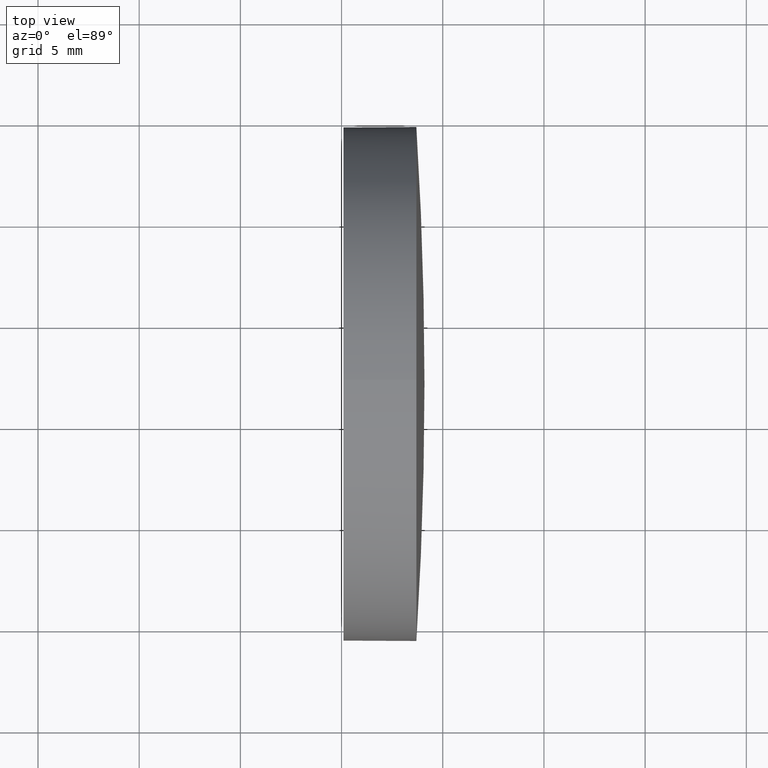
[diagram: clean part render]
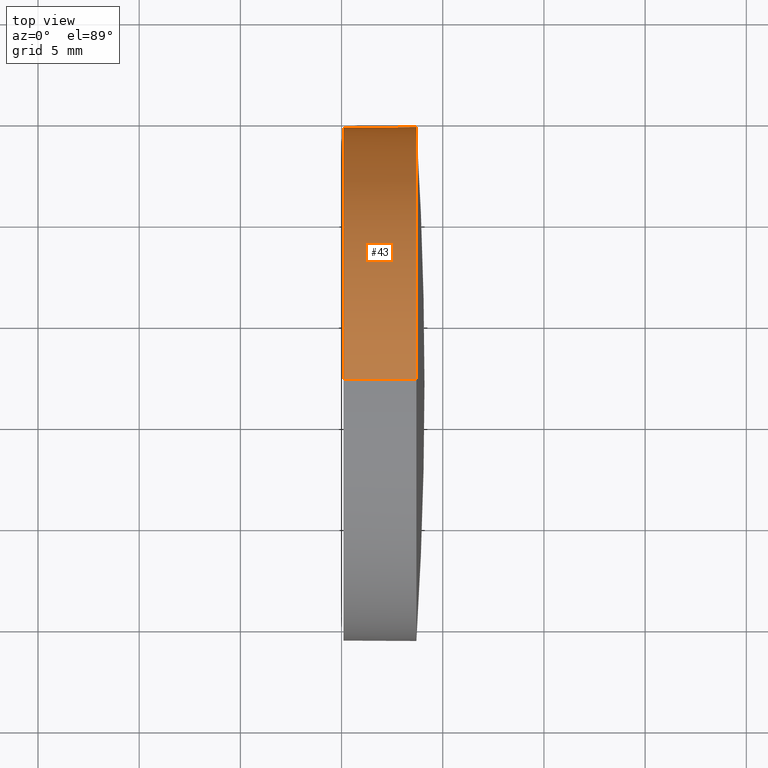
[diagram: same view with one face highlighted and labeled with its STEP entity id]
A machine part, top view. The second image highlights one B-rep face of the part: STEP entity #43.
In plain terms, the highlighted cylindrical surface (partial cylindrical patch) has radius 12.7 mm, axis along (-1, -0, -0).
Its self-contained STEP definition (entity closure, byte-faithful):
#6 = DIRECTION ( 'NONE',  ( 0.0000000000000000000, 0.0000000000000000000, 1.000000000000000000 ) ) ;
#10 = DIRECTION ( 'NONE',  ( -1.000000000000000000, -0.0000000000000000000, -0.0000000000000000000 ) ) ;
#13 = VERTEX_POINT ( 'NONE', #171 ) ;
#15 = CIRCLE ( 'NONE', #86, 12.70000000000001700 ) ;
#16 = AXIS2_PLACEMENT_3D ( 'NONE', #103, #161, #6 ) ;
#23 = CYLINDRICAL_SURFACE ( 'NONE', #16, 12.70000000000001700 ) ;
#25 = CIRCLE ( 'NONE', #48, 12.70000000000001700 ) ;
#26 = LINE ( 'NONE', #80, #147 ) ;
#28 = CARTESIAN_POINT ( 'NONE',  ( 433.6975226091756200, 147.0190194296691600, 0.0000000000000000000 ) ) ;
#30 = CARTESIAN_POINT ( 'NONE',  ( 433.6975226091756200, 147.0190194296691600, 12.70000000000001700 ) ) ;
#31 = DIRECTION ( 'NONE',  ( 0.0000000000000000000, 0.0000000000000000000, 1.000000000000000000 ) ) ;
#33 = ORIENTED_EDGE ( 'NONE', *, *, #167, .F. ) ;
#34 = DIRECTION ( 'NONE',  ( -1.000000000000000000, -0.0000000000000000000, -0.0000000000000000000 ) ) ;
#35 = EDGE_CURVE ( 'NONE', #36, #123, #26, .T. ) ;
#36 = VERTEX_POINT ( 'NONE', #30 ) ;
#43 = ADVANCED_FACE ( 'NONE', ( #182 ), #23, .T. ) ;
#47 = CARTESIAN_POINT ( 'NONE',  ( 433.6975226091756200, 147.0190194296691600, 0.0000000000000000000 ) ) ;
#48 = AXIS2_PLACEMENT_3D ( 'NONE', #47, #10, #79 ) ;
#64 = DIRECTION ( 'NONE',  ( 0.0000000000000000000, 0.0000000000000000000, 1.000000000000000000 ) ) ;
#65 = CARTESIAN_POINT ( 'NONE',  ( 430.0975226091756000, 147.0190194296691600, 12.70000000000001700 ) ) ;
#78 = DIRECTION ( 'NONE',  ( -1.000000000000000000, -0.0000000000000000000, -0.0000000000000000000 ) ) ;
#79 = DIRECTION ( 'NONE',  ( 0.0000000000000000000, 0.0000000000000000000, 1.000000000000000000 ) ) ;
#80 = CARTESIAN_POINT ( 'NONE',  ( 424.4676265580184200, 147.0190194296691600, 12.70000000000001700 ) ) ;
#81 = ORIENTED_EDGE ( 'NONE', *, *, #35, .F. ) ;
#86 = AXIS2_PLACEMENT_3D ( 'NONE', #28, #154, #64 ) ;
#91 = ORIENTED_EDGE ( 'NONE', *, *, #118, .T. ) ;
#100 = VERTEX_POINT ( 'NONE', #176 ) ;
#103 = CARTESIAN_POINT ( 'NONE',  ( 424.4676265580184200, 147.0190194296691600, 0.0000000000000000000 ) ) ;
#118 = EDGE_CURVE ( 'NONE', #155, #13, #172, .T. ) ;
#123 = VERTEX_POINT ( 'NONE', #65 ) ;
#134 = EDGE_CURVE ( 'NONE', #36, #100, #25, .T. ) ;
#142 = VECTOR ( 'NONE', #34, 1000.000000000000000 ) ;
#144 = AXIS2_PLACEMENT_3D ( 'NONE', #152, #78, #31 ) ;
#145 = DIRECTION ( 'NONE',  ( -1.000000000000000000, -0.0000000000000000000, -0.0000000000000000000 ) ) ;
#147 = VECTOR ( 'NONE', #145, 1000.000000000000000 ) ;
#152 = CARTESIAN_POINT ( 'NONE',  ( 430.0975226091756000, 147.0190194296691600, 0.0000000000000000000 ) ) ;
#154 = DIRECTION ( 'NONE',  ( -1.000000000000000000, -0.0000000000000000000, -0.0000000000000000000 ) ) ;
#155 = VERTEX_POINT ( 'NONE', #164 ) ;
#158 = ORIENTED_EDGE ( 'NONE', *, *, #183, .T. ) ;
#161 = DIRECTION ( 'NONE',  ( -1.000000000000000000, -0.0000000000000000000, -0.0000000000000000000 ) ) ;
#164 = CARTESIAN_POINT ( 'NONE',  ( 433.6975226091756200, 147.0190194296691600, -12.70000000000001700 ) ) ;
#167 = EDGE_CURVE ( 'NONE', #123, #13, #178, .T. ) ;
#171 = CARTESIAN_POINT ( 'NONE',  ( 430.0975226091756000, 147.0190194296691600, -12.70000000000001700 ) ) ;
#172 = LINE ( 'NONE', #179, #142 ) ;
#175 = EDGE_LOOP ( 'NONE', ( #158, #91, #33, #81, #181 ) ) ;
#176 = CARTESIAN_POINT ( 'NONE',  ( 433.6975226091756200, 159.7190194296693700, 1.555301434917123000E-015 ) ) ;
#178 = CIRCLE ( 'NONE', #144, 12.70000000000001700 ) ;
#179 = CARTESIAN_POINT ( 'NONE',  ( 424.4676265580184200, 147.0190194296691600, -12.70000000000001700 ) ) ;
#181 = ORIENTED_EDGE ( 'NONE', *, *, #134, .T. ) ;
#182 = FACE_OUTER_BOUND ( 'NONE', #175, .T. ) ;
#183 = EDGE_CURVE ( 'NONE', #100, #155, #15, .T. ) ;